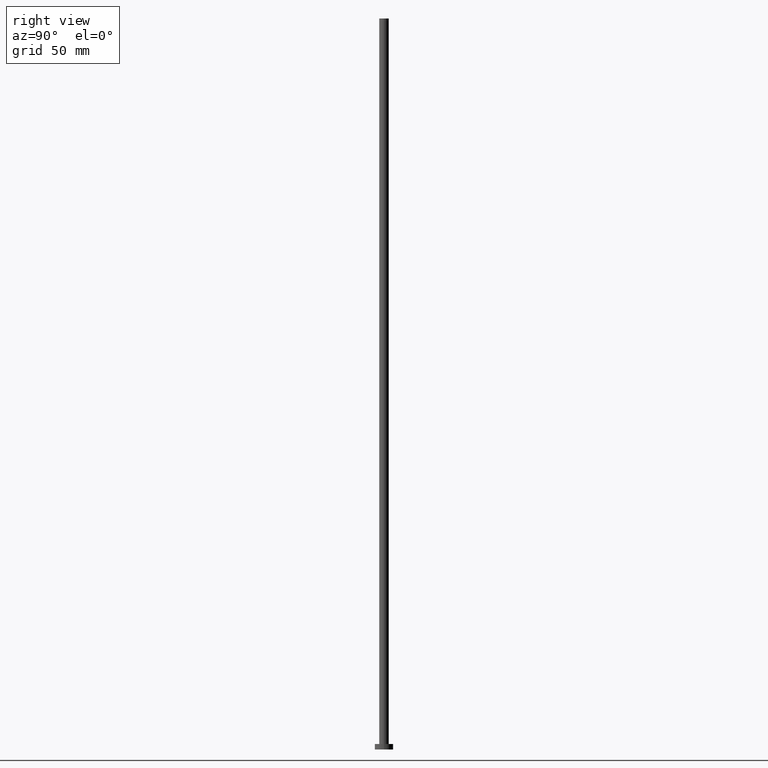
[diagram: clean part render]
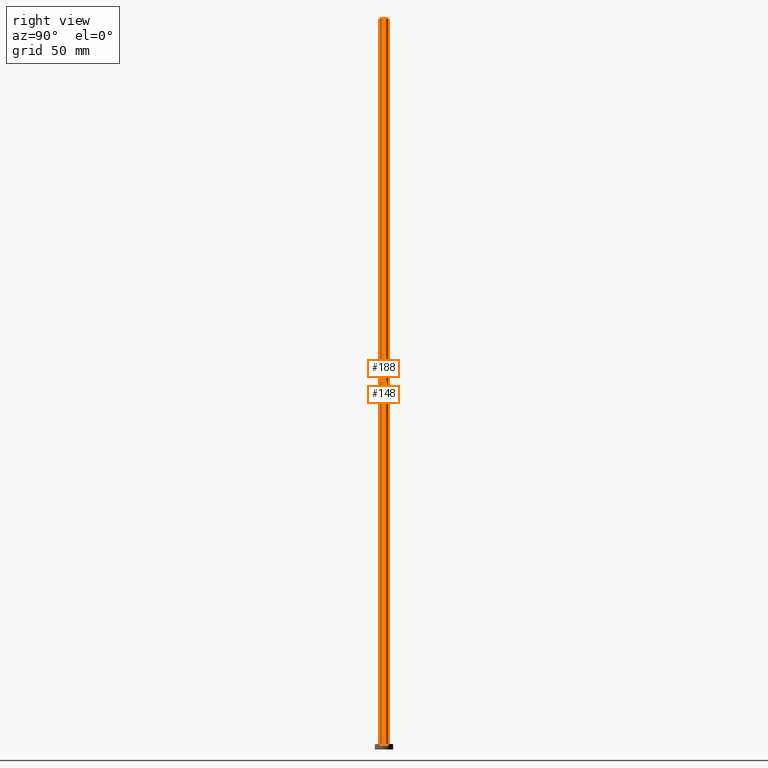
[diagram: same view with one multi-face feature highlighted, each face labeled with its STEP entity id]
A machine part, right view. The highlighted faces form ONE feature: a constant-radius fillet chain: 2 tangent blend faces with common blend radius 2.6 mm. The faces share edges in the B-rep.
Their STEP definitions:
[1] entity #188 (Cylinder):
#6 = EDGE_CURVE ( 'NONE', #79, #97, #155, .T. ) ;
#20 = CARTESIAN_POINT ( 'NONE',  ( 2.600000000000000089, 3.184081677783118191E-16, 400.0000000000000000 ) ) ;
#23 = DIRECTION ( 'NONE',  ( -0.000000000000000000, -0.000000000000000000, -1.000000000000000000 ) ) ;
#31 = AXIS2_PLACEMENT_3D ( 'NONE', #102, #84, #233 ) ;
#33 = CARTESIAN_POINT ( 'NONE',  ( 0.000000000000000000, 0.000000000000000000, 400.0000000000000000 ) ) ;
#40 = AXIS2_PLACEMENT_3D ( 'NONE', #48, #241, #201 ) ;
#44 = LINE ( 'NONE', #125, #60 ) ;
#48 = CARTESIAN_POINT ( 'NONE',  ( 0.000000000000000000, 0.000000000000000000, 3.000000000000000000 ) ) ;
#54 = CIRCLE ( 'NONE', #40, 2.600000000000000089 ) ;
#60 = VECTOR ( 'NONE', #23, 1000.000000000000000 ) ;
#63 = ORIENTED_EDGE ( 'NONE', *, *, #203, .T. ) ;
#79 = VERTEX_POINT ( 'NONE', #85 ) ;
#84 = DIRECTION ( 'NONE',  ( -0.000000000000000000, -0.000000000000000000, -1.000000000000000000 ) ) ;
#85 = CARTESIAN_POINT ( 'NONE',  ( -2.600000000000000089, 0.000000000000000000, 400.0000000000000000 ) ) ;
#86 = LINE ( 'NONE', #20, #199 ) ;
#94 = VERTEX_POINT ( 'NONE', #198 ) ;
#96 = ORIENTED_EDGE ( 'NONE', *, *, #207, .F. ) ;
#97 = VERTEX_POINT ( 'NONE', #121 ) ;
#102 = CARTESIAN_POINT ( 'NONE',  ( 0.000000000000000000, 0.000000000000000000, 400.0000000000000000 ) ) ;
#112 = CARTESIAN_POINT ( 'NONE',  ( 2.600000000000000089, 3.184081677783118191E-16, 3.000000000000000000 ) ) ;
#117 = DIRECTION ( 'NONE',  ( 0.000000000000000000, 0.000000000000000000, 1.000000000000000000 ) ) ;
#121 = CARTESIAN_POINT ( 'NONE',  ( 2.600000000000000089, 3.184081677783118191E-16, 400.0000000000000000 ) ) ;
#125 = CARTESIAN_POINT ( 'NONE',  ( -2.600000000000000089, 0.000000000000000000, 400.0000000000000000 ) ) ;
#153 = ORIENTED_EDGE ( 'NONE', *, *, #6, .F. ) ;
#155 = CIRCLE ( 'NONE', #187, 2.600000000000000089 ) ;
#160 = DIRECTION ( 'NONE',  ( -0.000000000000000000, -0.000000000000000000, -1.000000000000000000 ) ) ;
#179 = CYLINDRICAL_SURFACE ( 'NONE', #31, 2.600000000000000089 ) ;
#180 = FACE_OUTER_BOUND ( 'NONE', #211, .T. ) ;
#187 = AXIS2_PLACEMENT_3D ( 'NONE', #33, #117, #252 ) ;
#188 = ADVANCED_FACE ( 'NONE', ( #180 ), #179, .T. ) ;
#198 = CARTESIAN_POINT ( 'NONE',  ( -2.600000000000000089, 0.000000000000000000, 3.000000000000000000 ) ) ;
#199 = VECTOR ( 'NONE', #160, 1000.000000000000000 ) ;
#201 = DIRECTION ( 'NONE',  ( 1.000000000000000000, 0.000000000000000000, 0.000000000000000000 ) ) ;
#203 = EDGE_CURVE ( 'NONE', #79, #94, #44, .T. ) ;
#207 = EDGE_CURVE ( 'NONE', #97, #249, #86, .T. ) ;
#211 = EDGE_LOOP ( 'NONE', ( #96, #153, #63, #213 ) ) ;
#213 = ORIENTED_EDGE ( 'NONE', *, *, #248, .T. ) ;
#233 = DIRECTION ( 'NONE',  ( -1.000000000000000000, 0.000000000000000000, 0.000000000000000000 ) ) ;
#241 = DIRECTION ( 'NONE',  ( 0.000000000000000000, 0.000000000000000000, 1.000000000000000000 ) ) ;
#248 = EDGE_CURVE ( 'NONE', #94, #249, #54, .T. ) ;
#249 = VERTEX_POINT ( 'NONE', #112 ) ;
#252 = DIRECTION ( 'NONE',  ( 1.000000000000000000, 0.000000000000000000, 0.000000000000000000 ) ) ;
[2] entity #148 (Cylinder):
#17 = ORIENTED_EDGE ( 'NONE', *, *, #207, .T. ) ;
#20 = CARTESIAN_POINT ( 'NONE',  ( 2.600000000000000089, 3.184081677783118191E-16, 400.0000000000000000 ) ) ;
#23 = DIRECTION ( 'NONE',  ( -0.000000000000000000, -0.000000000000000000, -1.000000000000000000 ) ) ;
#39 = DIRECTION ( 'NONE',  ( 1.000000000000000000, 0.000000000000000000, 0.000000000000000000 ) ) ;
#43 = DIRECTION ( 'NONE',  ( 1.000000000000000000, 0.000000000000000000, 0.000000000000000000 ) ) ;
#44 = LINE ( 'NONE', #125, #60 ) ;
#49 = CIRCLE ( 'NONE', #132, 2.600000000000000089 ) ;
#60 = VECTOR ( 'NONE', #23, 1000.000000000000000 ) ;
#66 = CYLINDRICAL_SURFACE ( 'NONE', #120, 2.600000000000000089 ) ;
#79 = VERTEX_POINT ( 'NONE', #85 ) ;
#81 = ORIENTED_EDGE ( 'NONE', *, *, #189, .F. ) ;
#83 = EDGE_CURVE ( 'NONE', #249, #94, #49, .T. ) ;
#85 = CARTESIAN_POINT ( 'NONE',  ( -2.600000000000000089, 0.000000000000000000, 400.0000000000000000 ) ) ;
#86 = LINE ( 'NONE', #20, #199 ) ;
#94 = VERTEX_POINT ( 'NONE', #198 ) ;
#97 = VERTEX_POINT ( 'NONE', #121 ) ;
#99 = DIRECTION ( 'NONE',  ( -1.000000000000000000, 0.000000000000000000, 0.000000000000000000 ) ) ;
#105 = DIRECTION ( 'NONE',  ( -0.000000000000000000, -0.000000000000000000, -1.000000000000000000 ) ) ;
#112 = CARTESIAN_POINT ( 'NONE',  ( 2.600000000000000089, 3.184081677783118191E-16, 3.000000000000000000 ) ) ;
#120 = AXIS2_PLACEMENT_3D ( 'NONE', #220, #105, #99 ) ;
#121 = CARTESIAN_POINT ( 'NONE',  ( 2.600000000000000089, 3.184081677783118191E-16, 400.0000000000000000 ) ) ;
#125 = CARTESIAN_POINT ( 'NONE',  ( -2.600000000000000089, 0.000000000000000000, 400.0000000000000000 ) ) ;
#132 = AXIS2_PLACEMENT_3D ( 'NONE', #157, #218, #39 ) ;
#145 = AXIS2_PLACEMENT_3D ( 'NONE', #159, #254, #43 ) ;
#148 = ADVANCED_FACE ( 'NONE', ( #231 ), #66, .T. ) ;
#150 = CIRCLE ( 'NONE', #145, 2.600000000000000089 ) ;
#154 = ORIENTED_EDGE ( 'NONE', *, *, #83, .T. ) ;
#157 = CARTESIAN_POINT ( 'NONE',  ( 0.000000000000000000, 0.000000000000000000, 3.000000000000000000 ) ) ;
#159 = CARTESIAN_POINT ( 'NONE',  ( 0.000000000000000000, 0.000000000000000000, 400.0000000000000000 ) ) ;
#160 = DIRECTION ( 'NONE',  ( -0.000000000000000000, -0.000000000000000000, -1.000000000000000000 ) ) ;
#189 = EDGE_CURVE ( 'NONE', #97, #79, #150, .T. ) ;
#198 = CARTESIAN_POINT ( 'NONE',  ( -2.600000000000000089, 0.000000000000000000, 3.000000000000000000 ) ) ;
#199 = VECTOR ( 'NONE', #160, 1000.000000000000000 ) ;
#203 = EDGE_CURVE ( 'NONE', #79, #94, #44, .T. ) ;
#207 = EDGE_CURVE ( 'NONE', #97, #249, #86, .T. ) ;
#218 = DIRECTION ( 'NONE',  ( 0.000000000000000000, 0.000000000000000000, 1.000000000000000000 ) ) ;
#220 = CARTESIAN_POINT ( 'NONE',  ( 0.000000000000000000, 0.000000000000000000, 400.0000000000000000 ) ) ;
#228 = EDGE_LOOP ( 'NONE', ( #81, #17, #154, #230 ) ) ;
#230 = ORIENTED_EDGE ( 'NONE', *, *, #203, .F. ) ;
#231 = FACE_OUTER_BOUND ( 'NONE', #228, .T. ) ;
#249 = VERTEX_POINT ( 'NONE', #112 ) ;
#254 = DIRECTION ( 'NONE',  ( 0.000000000000000000, 0.000000000000000000, 1.000000000000000000 ) ) ;